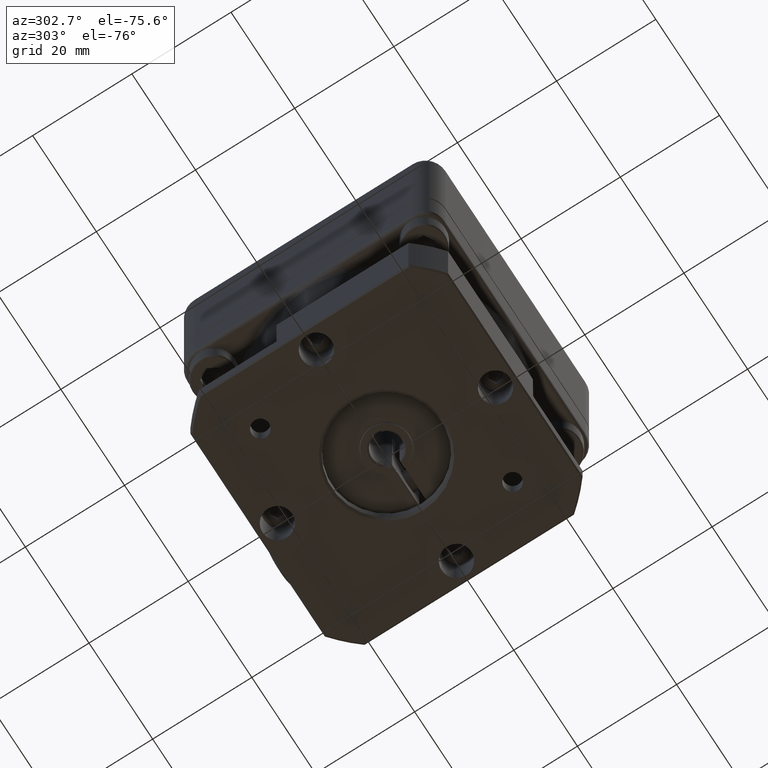
[diagram: clean part render]
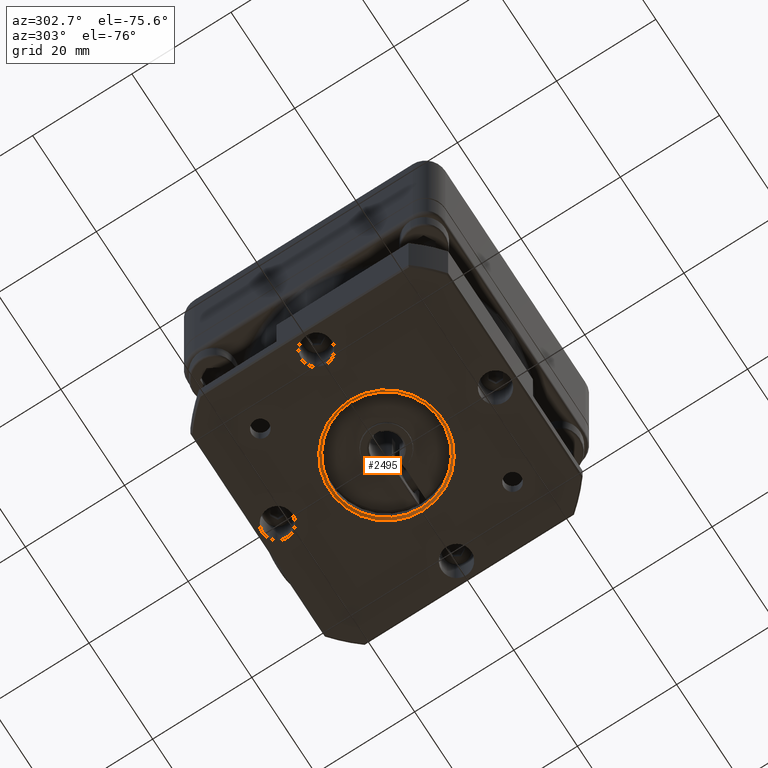
[diagram: same view with one face highlighted and labeled with its STEP entity id]
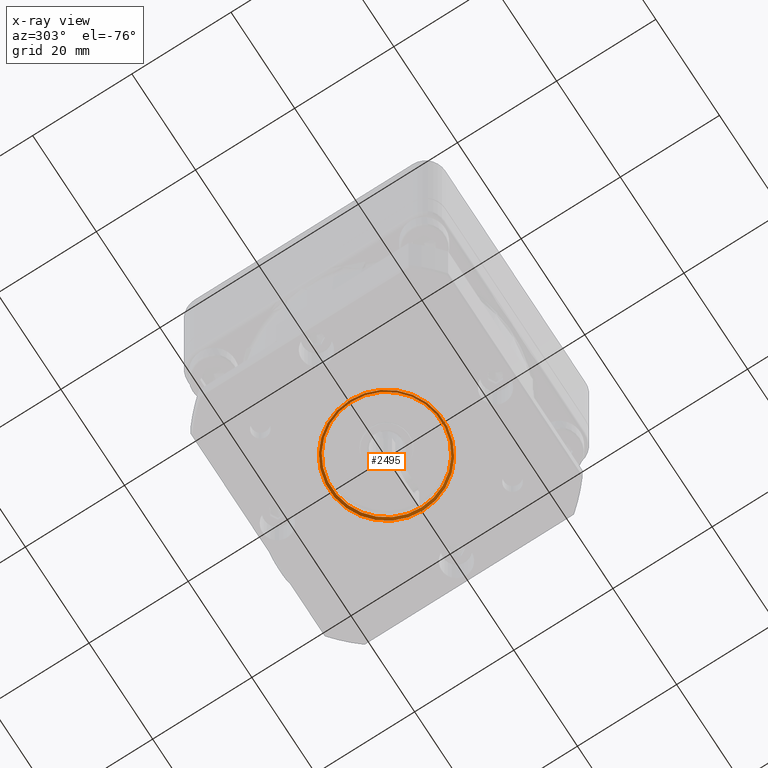
[diagram: x-ray of the same camera — body ghosted, the highlighted face saturated]
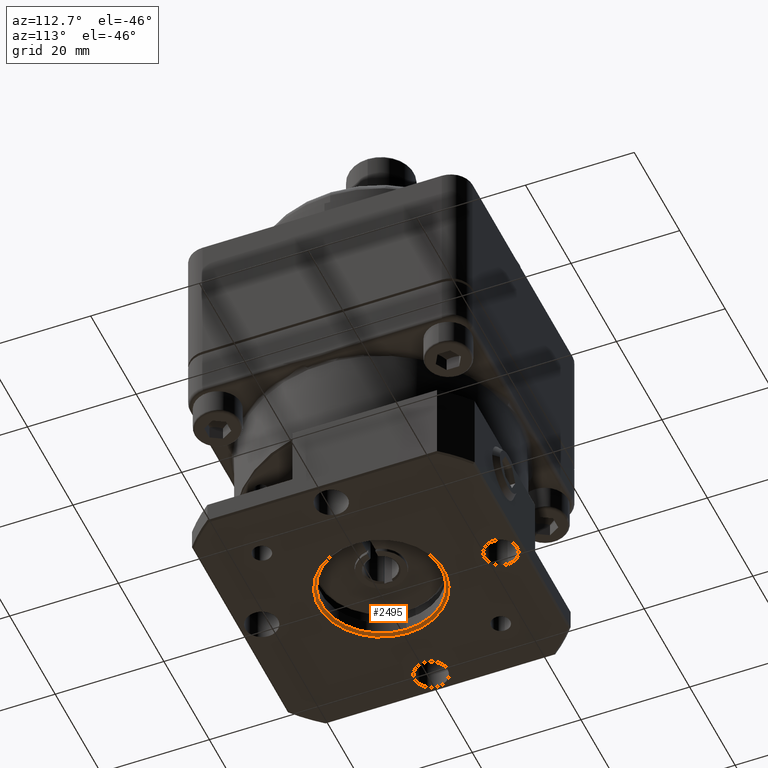
[diagram: same view with one face highlighted and labeled with its STEP entity id]
A machine part, auxiliary view. The second image highlights one B-rep face of the part: STEP entity #2495.
The next image is the same camera in x-ray: the body ghosted, the highlighted face saturated — about 0% of this face is hidden behind the body in this view.
A second angle (auxiliary view) of the same face is appended — the face is thin or edge-on in the first view.
In plain terms, the highlighted conical surface has half-angle 45 deg.
Its self-contained STEP definition (entity closure, byte-faithful):
#2468=CARTESIAN_POINT('',(0.0,-5.560609E-031,-41.25));
#2469=DIRECTION('',(0.0,-1.348026E-032,-1.0));
#2470=DIRECTION('',(1.0,0.0,0.0));
#2471=AXIS2_PLACEMENT_3D('',#2468,#2469,#2470);
#2472=CONICAL_SURFACE('',#2471,11.25,45.000000000000028);
#2473=CARTESIAN_POINT('',(-11.0,-1.347111E-015,-41.000000000000007));
#2474=VERTEX_POINT('',#2473);
#2475=CARTESIAN_POINT('',(0.0,-5.526908E-031,-41.000000000000007));
#2476=DIRECTION('',(0.0,0.0,1.0));
#2477=DIRECTION('',(1.0,0.0,0.0));
#2478=AXIS2_PLACEMENT_3D('',#2475,#2476,#2477);
#2479=CIRCLE('',#2478,11.0);
#2480=EDGE_CURVE('',#2474,#2474,#2479,.T.);
#2481=ORIENTED_EDGE('',*,*,#2480,.T.);
#2482=EDGE_LOOP('',(#2481));
#2483=FACE_OUTER_BOUND('',#2482,.T.);
#2484=CARTESIAN_POINT('',(-11.500000000000002,1.408344E-015,-41.5));
#2485=VERTEX_POINT('',#2484);
#2486=CARTESIAN_POINT('',(0.0,-5.594310E-031,-41.5));
#2487=DIRECTION('',(0.0,0.0,-1.0));
#2488=DIRECTION('',(1.0,0.0,0.0));
#2489=AXIS2_PLACEMENT_3D('',#2486,#2487,#2488);
#2490=CIRCLE('',#2489,11.500000000000002);
#2491=EDGE_CURVE('',#2485,#2485,#2490,.T.);
#2492=ORIENTED_EDGE('',*,*,#2491,.T.);
#2493=EDGE_LOOP('',(#2492));
#2494=FACE_BOUND('',#2493,.T.);
#2495=ADVANCED_FACE('',(#2483,#2494),#2472,.F.);